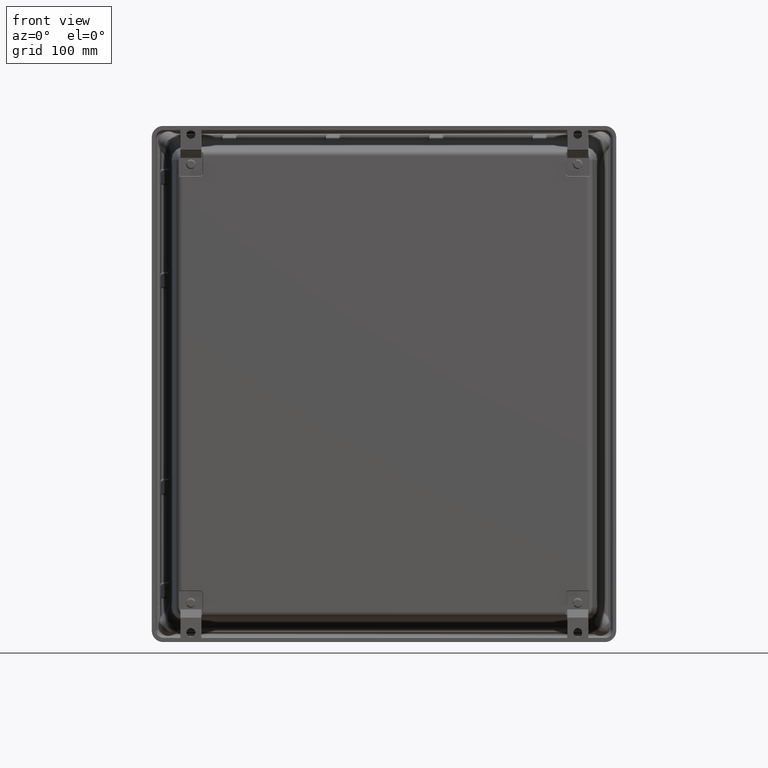
[diagram: clean part render]
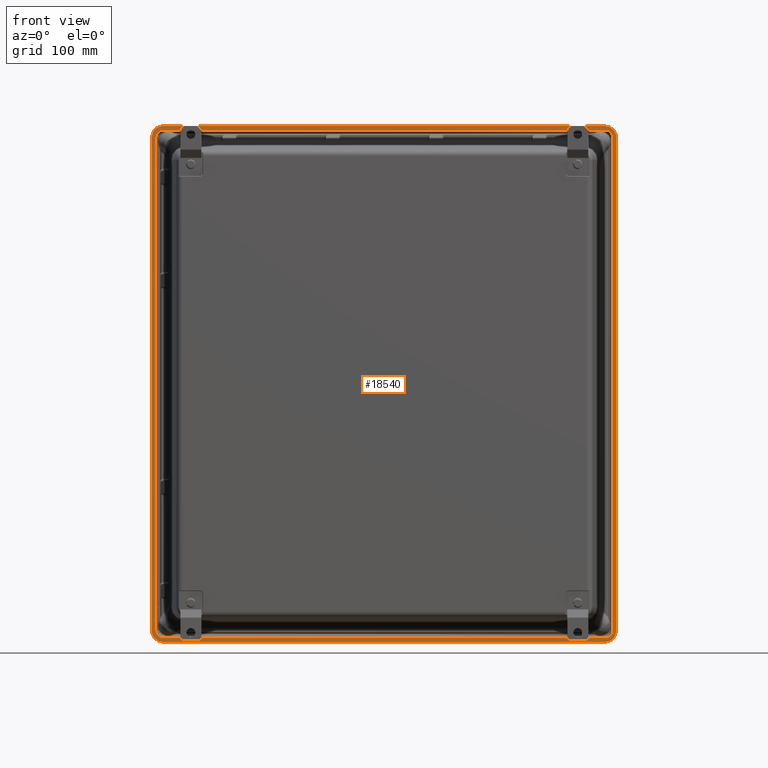
[diagram: same view with one face highlighted and labeled with its STEP entity id]
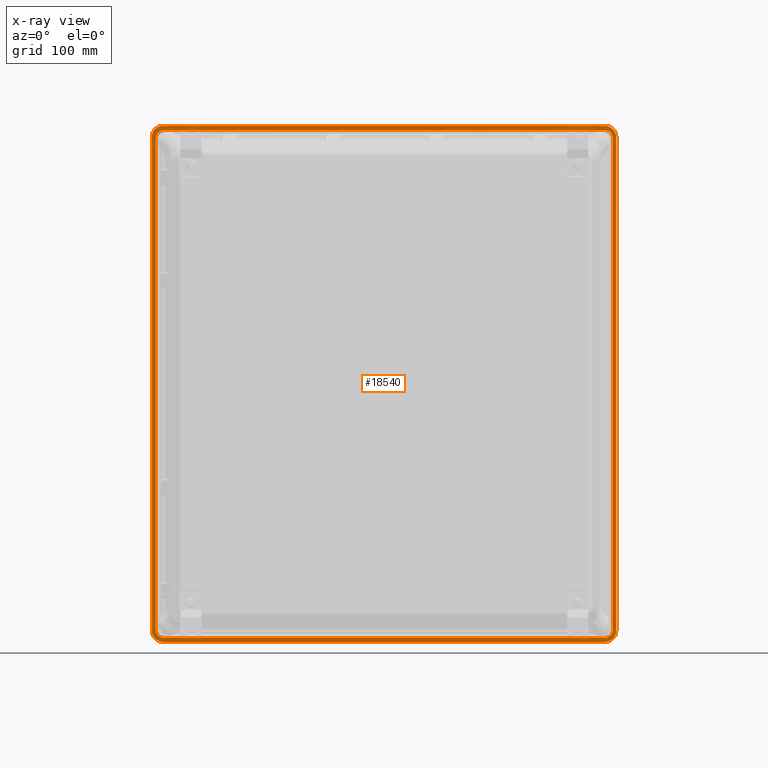
[diagram: x-ray of the same camera — body ghosted, the highlighted face saturated]
A machine part, front view. The second image highlights one B-rep face of the part: STEP entity #18540.
The next image is the same camera in x-ray: the body ghosted, the highlighted face saturated — about 3% of this face is hidden behind the body in this view.
In plain terms, the highlighted planar face has unit normal (0, 1, 0).
Its self-contained STEP definition (entity closure, byte-faithful):
#45 = VERTEX_POINT ( 'NONE', #23073 ) ;
#207 = EDGE_CURVE ( 'NONE', #40406, #45, #12348, .T. ) ;
#1134 = DIRECTION ( 'NONE',  ( 0.0000000000000000000, 0.0000000000000000000, 1.000000000000000000 ) ) ;
#1336 = AXIS2_PLACEMENT_3D ( 'NONE', #39338, #17071, #43101 ) ;
#1887 = CARTESIAN_POINT ( 'NONE',  ( -9.562999999999997100, 0.0000000000000000000, -9.000000000000000000 ) ) ;
#1966 = DIRECTION ( 'NONE',  ( -0.0000000000000000000, 1.000000000000000000, -0.0000000000000000000 ) ) ;
#2003 = DIRECTION ( 'NONE',  ( 0.0000000000000000000, 1.000000000000000000, 0.0000000000000000000 ) ) ;
#2069 = AXIS2_PLACEMENT_3D ( 'NONE', #2235, #28195, #5969 ) ;
#2235 = CARTESIAN_POINT ( 'NONE',  ( 9.532999999999999500, 0.0000000000000000000, -8.562999999999998800 ) ) ;
#2342 = EDGE_CURVE ( 'NONE', #3959, #41162, #19764, .T. ) ;
#2958 = CARTESIAN_POINT ( 'NONE',  ( 9.532999999999997700, 0.0000000000000000000, -8.875000000000000000 ) ) ;
#2962 = CIRCLE ( 'NONE', #47396, 0.4369999999999997200 ) ;
#3711 = CIRCLE ( 'NONE', #2069, 0.3120000000000003900 ) ;
#3935 = VERTEX_POINT ( 'NONE', #30986 ) ;
#3959 = VERTEX_POINT ( 'NONE', #23526 ) ;
#4698 = VERTEX_POINT ( 'NONE', #46458 ) ;
#4700 = LINE ( 'NONE', #33700, #23276 ) ;
#4758 = CARTESIAN_POINT ( 'NONE',  ( -9.562999999999997100, 0.0000000000000000000, -9.000000000000000000 ) ) ;
#5064 = ORIENTED_EDGE ( 'NONE', *, *, #15115, .T. ) ;
#5320 = CIRCLE ( 'NONE', #40913, 0.3120000000000003900 ) ;
#5364 = CIRCLE ( 'NONE', #13762, 0.4369999999999997200 ) ;
#5969 = DIRECTION ( 'NONE',  ( 0.0000000000000000000, 0.0000000000000000000, 1.000000000000000000 ) ) ;
#6146 = LINE ( 'NONE', #22022, #34610 ) ;
#7008 = DIRECTION ( 'NONE',  ( -0.0000000000000000000, 1.000000000000000000, -0.0000000000000000000 ) ) ;
#7560 = EDGE_CURVE ( 'NONE', #45, #36675, #41660, .T. ) ;
#7704 = VERTEX_POINT ( 'NONE', #41664 ) ;
#8001 = EDGE_CURVE ( 'NONE', #22683, #7704, #27674, .T. ) ;
#9100 = DIRECTION ( 'NONE',  ( 1.000000000000000000, 0.0000000000000000000, 5.713370268041961600E-017 ) ) ;
#9911 = CARTESIAN_POINT ( 'NONE',  ( -9.532999999999997700, 0.0000000000000000000, -8.875000000000000000 ) ) ;
#10282 = AXIS2_PLACEMENT_3D ( 'NONE', #24187, #1966, #27909 ) ;
#10402 = LINE ( 'NONE', #9911, #11558 ) ;
#10613 = CARTESIAN_POINT ( 'NONE',  ( -9.532999999999999500, 0.0000000000000000000, -8.562999999999998800 ) ) ;
#10951 = EDGE_CURVE ( 'NONE', #17167, #26773, #38542, .T. ) ;
#11096 = ORIENTED_EDGE ( 'NONE', *, *, #7560, .F. ) ;
#11168 = DIRECTION ( 'NONE',  ( 1.000000000000000000, 0.0000000000000000000, 0.0000000000000000000 ) ) ;
#11258 = DIRECTION ( 'NONE',  ( 1.278356571672561700E-016, 0.0000000000000000000, 1.000000000000000000 ) ) ;
#11558 = VECTOR ( 'NONE', #35920, 39.37007874015748100 ) ;
#11786 = EDGE_CURVE ( 'NONE', #36675, #46140, #3711, .T. ) ;
#12348 = CIRCLE ( 'NONE', #23397, 0.3120000000000003900 ) ;
#13151 = VECTOR ( 'NONE', #46929, 39.37007874015748100 ) ;
#13374 = EDGE_CURVE ( 'NONE', #7704, #3959, #44968, .T. ) ;
#13714 = EDGE_CURVE ( 'NONE', #41162, #3935, #26915, .T. ) ;
#13762 = AXIS2_PLACEMENT_3D ( 'NONE', #29262, #7008, #32992 ) ;
#13813 = VERTEX_POINT ( 'NONE', #17169 ) ;
#13953 = DIRECTION ( 'NONE',  ( 1.276117245668230400E-016, 0.0000000000000000000, 1.000000000000000000 ) ) ;
#14312 = ORIENTED_EDGE ( 'NONE', *, *, #16735, .F. ) ;
#14353 = DIRECTION ( 'NONE',  ( 0.0000000000000000000, 0.0000000000000000000, -1.000000000000000000 ) ) ;
#14379 = FACE_BOUND ( 'NONE', #15840, .T. ) ;
#14689 = AXIS2_PLACEMENT_3D ( 'NONE', #45634, #23357, #1134 ) ;
#14883 = VERTEX_POINT ( 'NONE', #42167 ) ;
#15115 = EDGE_CURVE ( 'NONE', #26773, #22683, #5364, .T. ) ;
#15676 = ORIENTED_EDGE ( 'NONE', *, *, #36550, .T. ) ;
#15840 = EDGE_LOOP ( 'NONE', ( #25008, #25284, #16437, #14312, #16275, #11096, #33861, #24452 ) ) ;
#15866 = EDGE_CURVE ( 'NONE', #42217, #14883, #5320, .T. ) ;
#15955 = CARTESIAN_POINT ( 'NONE',  ( -9.563000000000000600, 0.0000000000000000000, -8.563000000000000600 ) ) ;
#16263 = PLANE ( 'NONE',  #38220 ) ;
#16275 = ORIENTED_EDGE ( 'NONE', *, *, #11786, .F. ) ;
#16437 = ORIENTED_EDGE ( 'NONE', *, *, #15866, .F. ) ;
#16735 = EDGE_CURVE ( 'NONE', #46140, #42217, #10402, .T. ) ;
#17071 = DIRECTION ( 'NONE',  ( -0.0000000000000000000, 1.000000000000000000, -0.0000000000000000000 ) ) ;
#17167 = VERTEX_POINT ( 'NONE', #21245 ) ;
#17169 = CARTESIAN_POINT ( 'NONE',  ( -9.532999999999994100, 0.0000000000000000000, 8.844999999999998900 ) ) ;
#17750 = VECTOR ( 'NONE', #13953, 39.37007874015748100 ) ;
#18540 = ADVANCED_FACE ( 'NONE', ( #14379, #42947 ), #16263, .F. ) ;
#18820 = CARTESIAN_POINT ( 'NONE',  ( -9.532999999999994100, 0.0000000000000000000, 8.844999999999998900 ) ) ;
#19356 = CARTESIAN_POINT ( 'NONE',  ( 9.532999999999994100, 0.0000000000000000000, 8.844999999999998900 ) ) ;
#19384 = CARTESIAN_POINT ( 'NONE',  ( -9.532999999999997700, 0.0000000000000000000, -8.875000000000000000 ) ) ;
#19764 = LINE ( 'NONE', #46492, #39556 ) ;
#19996 = DIRECTION ( 'NONE',  ( 0.0000000000000000000, -0.0000000000000000000, -1.000000000000000000 ) ) ;
#20757 = CARTESIAN_POINT ( 'NONE',  ( 9.563000000000000600, 0.0000000000000000000, -8.563000000000000600 ) ) ;
#21245 = CARTESIAN_POINT ( 'NONE',  ( 9.562999999999997100, 0.0000000000000000000, -9.000000000000000000 ) ) ;
#22022 = CARTESIAN_POINT ( 'NONE',  ( 10.00000000000000000, 0.0000000000000000000, -8.562999999999997100 ) ) ;
#22683 = VERTEX_POINT ( 'NONE', #30861 ) ;
#23073 = CARTESIAN_POINT ( 'NONE',  ( 9.844999999999997100, 0.0000000000000000000, 8.532999999999995900 ) ) ;
#23276 = VECTOR ( 'NONE', #11258, 39.37007874015748100 ) ;
#23357 = DIRECTION ( 'NONE',  ( 0.0000000000000000000, 1.000000000000000000, 0.0000000000000000000 ) ) ;
#23397 = AXIS2_PLACEMENT_3D ( 'NONE', #24227, #2003, #27945 ) ;
#23526 = CARTESIAN_POINT ( 'NONE',  ( -9.562999999999995300, 0.0000000000000000000, 8.999999999999998200 ) ) ;
#24187 = CARTESIAN_POINT ( 'NONE',  ( 9.563000000000005900, 0.0000000000000000000, 8.563000000000000600 ) ) ;
#24227 = CARTESIAN_POINT ( 'NONE',  ( 9.532999999999997700, 0.0000000000000000000, 8.532999999999999500 ) ) ;
#24452 = ORIENTED_EDGE ( 'NONE', *, *, #36010, .F. ) ;
#24511 = DIRECTION ( 'NONE',  ( 0.0000000000000000000, 0.0000000000000000000, -1.000000000000000000 ) ) ;
#25008 = ORIENTED_EDGE ( 'NONE', *, *, #43178, .F. ) ;
#25284 = ORIENTED_EDGE ( 'NONE', *, *, #30739, .F. ) ;
#25785 = DIRECTION ( 'NONE',  ( -2.552234491336460900E-016, -0.0000000000000000000, -1.000000000000000000 ) ) ;
#26773 = VERTEX_POINT ( 'NONE', #4758 ) ;
#26915 = CIRCLE ( 'NONE', #10282, 0.4369999999999997200 ) ;
#27306 = CIRCLE ( 'NONE', #14689, 0.3120000000000003900 ) ;
#27674 = LINE ( 'NONE', #39971, #17750 ) ;
#27909 = DIRECTION ( 'NONE',  ( 0.0000000000000000000, 0.0000000000000000000, -1.000000000000000000 ) ) ;
#27945 = DIRECTION ( 'NONE',  ( 0.0000000000000000000, 0.0000000000000000000, 1.000000000000000000 ) ) ;
#28195 = DIRECTION ( 'NONE',  ( 0.0000000000000000000, 1.000000000000000000, 0.0000000000000000000 ) ) ;
#28264 = ORIENTED_EDGE ( 'NONE', *, *, #2342, .T. ) ;
#28820 = VECTOR ( 'NONE', #11168, 39.37007874015748100 ) ;
#29262 = CARTESIAN_POINT ( 'NONE',  ( -9.563000000000000600, 0.0000000000000000000, -8.563000000000000600 ) ) ;
#30472 = EDGE_CURVE ( 'NONE', #4698, #17167, #2962, .T. ) ;
#30739 = EDGE_CURVE ( 'NONE', #14883, #31391, #4700, .T. ) ;
#30861 = CARTESIAN_POINT ( 'NONE',  ( -10.00000000000000000, 0.0000000000000000000, -8.562999999999997100 ) ) ;
#30986 = CARTESIAN_POINT ( 'NONE',  ( 10.00000000000000500, 0.0000000000000000000, 8.562999999999997100 ) ) ;
#31177 = LINE ( 'NONE', #18820, #28820 ) ;
#31391 = VERTEX_POINT ( 'NONE', #46973 ) ;
#31591 = DIRECTION ( 'NONE',  ( -1.000000000000000000, -0.0000000000000000000, -0.0000000000000000000 ) ) ;
#31858 = ORIENTED_EDGE ( 'NONE', *, *, #13714, .T. ) ;
#32992 = DIRECTION ( 'NONE',  ( 0.0000000000000000000, 0.0000000000000000000, -1.000000000000000000 ) ) ;
#33700 = CARTESIAN_POINT ( 'NONE',  ( -9.844999999999998900, 0.0000000000000000000, -8.562999999999997100 ) ) ;
#33861 = ORIENTED_EDGE ( 'NONE', *, *, #207, .F. ) ;
#34610 = VECTOR ( 'NONE', #25785, 39.37007874015748100 ) ;
#35920 = DIRECTION ( 'NONE',  ( -1.000000000000000000, -0.0000000000000000000, -0.0000000000000000000 ) ) ;
#36010 = EDGE_CURVE ( 'NONE', #13813, #40406, #31177, .T. ) ;
#36550 = EDGE_CURVE ( 'NONE', #3935, #4698, #6146, .T. ) ;
#36633 = DIRECTION ( 'NONE',  ( -0.0000000000000000000, 1.000000000000000000, -0.0000000000000000000 ) ) ;
#36675 = VERTEX_POINT ( 'NONE', #41361 ) ;
#36764 = ORIENTED_EDGE ( 'NONE', *, *, #10951, .T. ) ;
#38220 = AXIS2_PLACEMENT_3D ( 'NONE', #15955, #42295, #19996 ) ;
#38542 = LINE ( 'NONE', #1887, #46119 ) ;
#39338 = CARTESIAN_POINT ( 'NONE',  ( -9.562999999999998800, 0.0000000000000000000, 8.562999999999998800 ) ) ;
#39556 = VECTOR ( 'NONE', #9100, 39.37007874015748100 ) ;
#39902 = CARTESIAN_POINT ( 'NONE',  ( 9.563000000000002400, 0.0000000000000000000, 9.000000000000000000 ) ) ;
#39971 = CARTESIAN_POINT ( 'NONE',  ( -10.00000000000000000, 0.0000000000000000000, -8.562999999999997100 ) ) ;
#40406 = VERTEX_POINT ( 'NONE', #19356 ) ;
#40913 = AXIS2_PLACEMENT_3D ( 'NONE', #10613, #36633, #14353 ) ;
#41162 = VERTEX_POINT ( 'NONE', #39902 ) ;
#41361 = CARTESIAN_POINT ( 'NONE',  ( 9.844999999999998900, 0.0000000000000000000, -8.562999999999997100 ) ) ;
#41660 = LINE ( 'NONE', #43059, #13151 ) ;
#41664 = CARTESIAN_POINT ( 'NONE',  ( -9.999999999999998200, 0.0000000000000000000, 8.562999999999995300 ) ) ;
#41882 = EDGE_LOOP ( 'NONE', ( #5064, #47194, #45084, #28264, #31858, #15676, #44472, #36764 ) ) ;
#42167 = CARTESIAN_POINT ( 'NONE',  ( -9.844999999999998900, 0.0000000000000000000, -8.562999999999997100 ) ) ;
#42217 = VERTEX_POINT ( 'NONE', #19384 ) ;
#42295 = DIRECTION ( 'NONE',  ( 0.0000000000000000000, -1.000000000000000000, 0.0000000000000000000 ) ) ;
#42947 = FACE_OUTER_BOUND ( 'NONE', #41882, .T. ) ;
#43059 = CARTESIAN_POINT ( 'NONE',  ( 9.844999999999998900, 0.0000000000000000000, -8.562999999999997100 ) ) ;
#43101 = DIRECTION ( 'NONE',  ( 0.0000000000000000000, 0.0000000000000000000, -1.000000000000000000 ) ) ;
#43178 = EDGE_CURVE ( 'NONE', #31391, #13813, #27306, .T. ) ;
#44472 = ORIENTED_EDGE ( 'NONE', *, *, #30472, .T. ) ;
#44968 = CIRCLE ( 'NONE', #1336, 0.4369999999999997200 ) ;
#45084 = ORIENTED_EDGE ( 'NONE', *, *, #13374, .T. ) ;
#45634 = CARTESIAN_POINT ( 'NONE',  ( -9.532999999999997700, 0.0000000000000000000, 8.532999999999999500 ) ) ;
#46119 = VECTOR ( 'NONE', #31591, 39.37007874015748100 ) ;
#46140 = VERTEX_POINT ( 'NONE', #2958 ) ;
#46458 = CARTESIAN_POINT ( 'NONE',  ( 10.00000000000000000, 0.0000000000000000000, -8.562999999999997100 ) ) ;
#46492 = CARTESIAN_POINT ( 'NONE',  ( -9.562999999999995300, 0.0000000000000000000, 8.999999999999998200 ) ) ;
#46779 = DIRECTION ( 'NONE',  ( -0.0000000000000000000, 1.000000000000000000, -0.0000000000000000000 ) ) ;
#46929 = DIRECTION ( 'NONE',  ( 1.278356571672561700E-016, -0.0000000000000000000, -1.000000000000000000 ) ) ;
#46973 = CARTESIAN_POINT ( 'NONE',  ( -9.844999999999997100, 0.0000000000000000000, 8.532999999999995900 ) ) ;
#47194 = ORIENTED_EDGE ( 'NONE', *, *, #8001, .T. ) ;
#47396 = AXIS2_PLACEMENT_3D ( 'NONE', #20757, #46779, #24511 ) ;